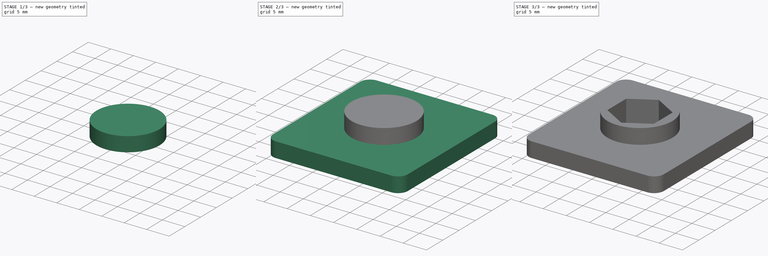
[diagram: build sequence overview — one tinted view per stage of 3, left to right]
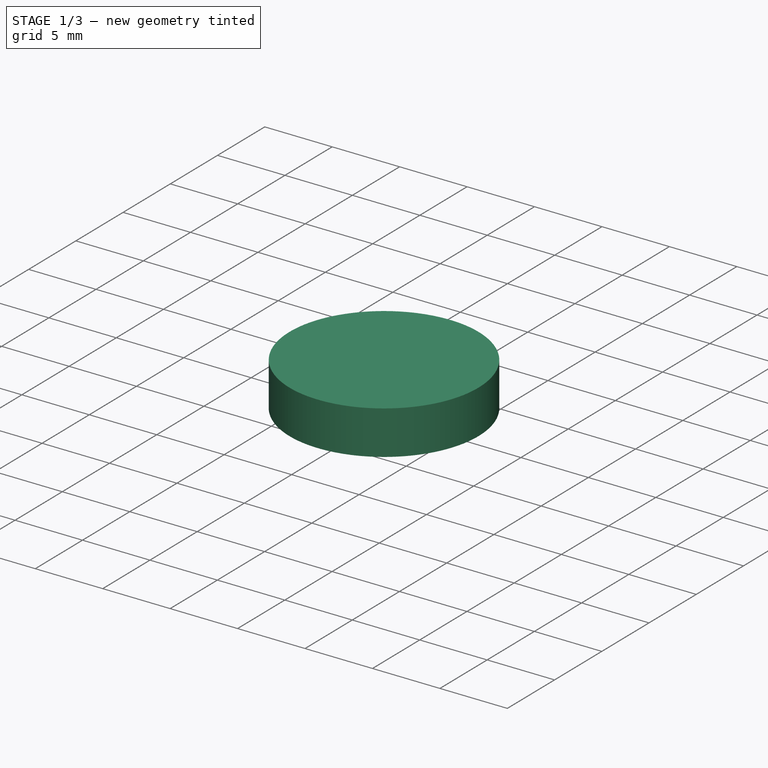
[diagram: stage 1 of 3 — iso view after this stage's code; geometry added in this stage tinted green]
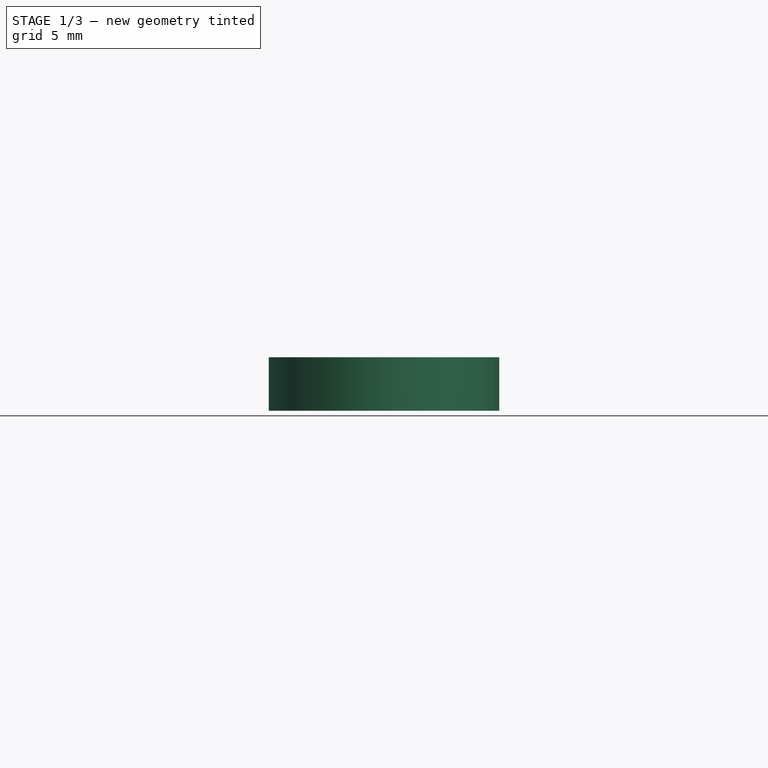
[diagram: stage 1 of 3 — front view after this stage's code; geometry added in this stage tinted green]
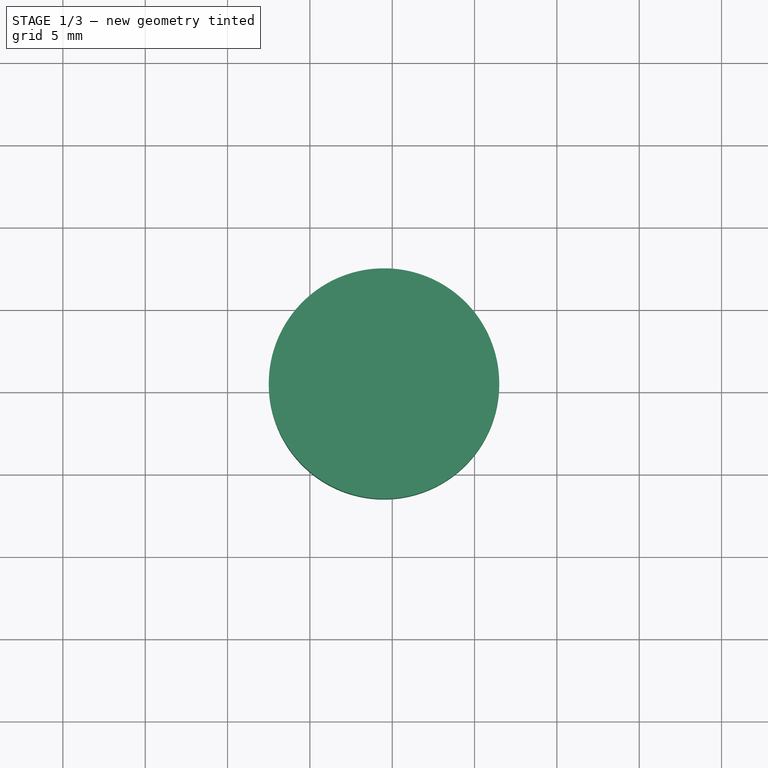
[diagram: stage 1 of 3 — top view after this stage's code; geometry added in this stage tinted green]
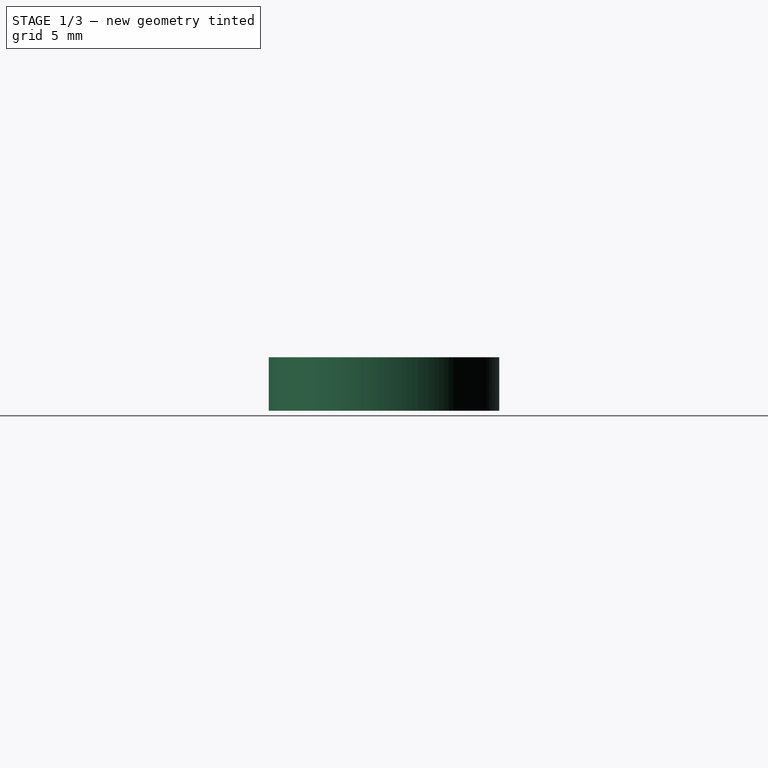
[diagram: stage 1 of 3 — right view after this stage's code; geometry added in this stage tinted green]
FCSTD DOCUMENT  (FreeCAD 0.20R29177 (Git))
Label: MirrorMount
License: All rights reserved
LicenseURL: http://en.wikipedia.org/wiki/All_rights_reserved
objects: Sketcher::SketchObject×4, Part::Face×4, Part::Extrusion×4, Part::Cut×2, Part::Fillet×1, Part::Fuse×1
note: 16 computed .brp shape members not serialized (recipe doc carries the construction recipe); baked Part::Feature solids carry a one-line shape summary decoded from their .brp

FEATURE [Sketcher::SketchObject] Sketch
  FullyConstrained = false
  sketch-geometry (11):
    g0: LineSegment StartX=0 StartY=0 StartZ=0 EndX=29 EndY=0 EndZ=0
    g1: LineSegment StartX=29 StartY=0 StartZ=0 EndX=29 EndY=31 EndZ=0
    g2: LineSegment StartX=29 StartY=31 StartZ=0 EndX=0 EndY=31 EndZ=0
    g3: LineSegment StartX=0 StartY=31 StartZ=0 EndX=0 EndY=0 EndZ=0
    g4: Circle CenterX=14.5 CenterY=15.5 CenterZ=0 NormalX=0 NormalY=0 NormalZ=1 AngleXU=0 Radius=7
    g5: LineSegment StartX=14.5 StartY=15.5 StartZ=0 EndX=29 EndY=15.5 EndZ=0
    g6: LineSegment StartX=14.5 StartY=15.5 StartZ=0 EndX=0 EndY=15.5 EndZ=0
    g7: LineSegment StartX=14.5 StartY=15.5 StartZ=0 EndX=14.5 EndY=22.5 EndZ=0
    g8: LineSegment StartX=14.5 StartY=15.5 StartZ=0 EndX=14.5 EndY=8.17687 EndZ=0
    g9: LineSegment StartX=14.5 StartY=8.17687 StartZ=0 EndX=14.5 EndY=0 EndZ=0
    g10: LineSegment StartX=0 StartY=0 StartZ=0 EndX=29 EndY=31 EndZ=0
  constraints (30):
    c: Coincident(g0,g1)
    c: Coincident(g1,g2)
    c: Coincident(g2,g3)
    c: Coincident(g3,g0)
    c: Horizontal(g0)
    c: Horizontal(g2)
    c: Vertical(g1)
    c: Vertical(g3)
    c: Coincident(g0,g-1)
    c: DistanceX(g0,g0) = 29
    c: Diameter(g4) = 14
    c: Coincident(g5,g4)
    c: PointOnObject(g5,g1)
    c: Horizontal(g5)
    c: Coincident(g6,g4)
    c: PointOnObject(g6,g3)
    c: Perpendicular(g3,g6)
    c: Equal(g5,g6)
    c: Coincident(g7,g4)
    c: PointOnObject(g7,g4)
    c: Vertical(g7)
    c: DistanceY(g0,g7) = 22.5
    c: Coincident(g8,g4)
    c: Vertical(g8)
    c: Coincident(g9,g8)
    c: PointOnObject(g9,g0)
    c: Perpendicular(g0,g9)
    c: Coincident(g10,g0)
    c: Coincident(g10,g1)
    c: PointOnObject(g4,g10)
FEATURE [Part::Face] Face
  FaceMakerClass = Part::FaceMakerBullseye
  Sources = -> [Sketch]
FEATURE [Part::Extrusion] Extrude
  Base = -> Face
  Dir = (0,0,1)
  DirMode = 2
  FaceMakerClass = Part::FaceMakerBullseye
  LengthFwd = 3.25
  LengthRev = 0
  Solid = false
  Symmetric = false
FEATURE [Part::Fillet] Fillet
  Base = -> Extrude
  Edges = 4 edges r=2.1: [Edge1,Edge2,Edge5,Edge8]
FEATURE [Sketcher::SketchObject] Sketch001
  ExternalGeometry = -> [Sketch]
  FullyConstrained = true
  MapMode = 5
  Placement = pos=(0,0,3.25) rot=(0,0,1;0rad)
  Support = -> [Fillet]
  sketch-geometry (3):
    g0: Circle CenterX=14.5 CenterY=15.5 CenterZ=0 NormalX=0 NormalY=0 NormalZ=1 AngleXU=0 Radius=7
    g1: LineSegment StartX=0 StartY=31 StartZ=0 EndX=29 EndY=0 EndZ=0
    g2: LineSegment StartX=0 StartY=0 StartZ=0 EndX=29 EndY=31 EndZ=0
  constraints (7):
    c: Coincident(g1,g-4)
    c: Coincident(g1,g-3)
    c: Coincident(g2,g-1)
    c: Coincident(g2,g-4)
    c: PointOnObject(g0,g2)
    c: PointOnObject(g0,g1)
    c: Diameter(g0) = 14
FEATURE [Part::Face] Face001
  FaceMakerClass = Part::FaceMakerBullseye
  Sources = -> [Sketch001]
FEATURE [Part::Extrusion] Extrude001
  Base = -> Face001
  Dir = (0,0,1)
  DirMode = 2
  FaceMakerClass = Part::FaceMakerBullseye
  LengthFwd = 3.25
  LengthRev = 0
  Solid = false
  Symmetric = false
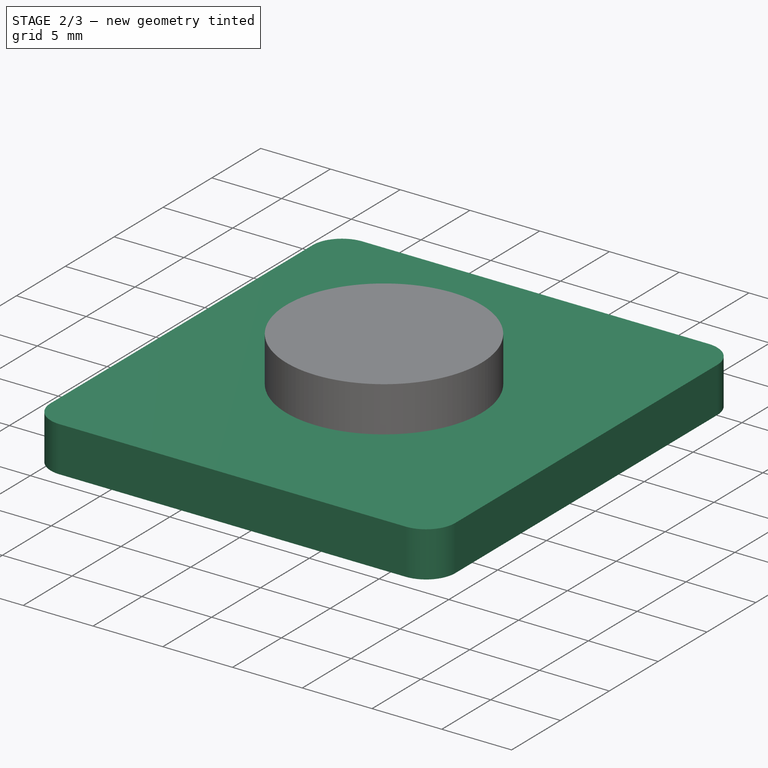
[diagram: stage 2 of 3 — iso view after this stage's code; geometry added in this stage tinted green]
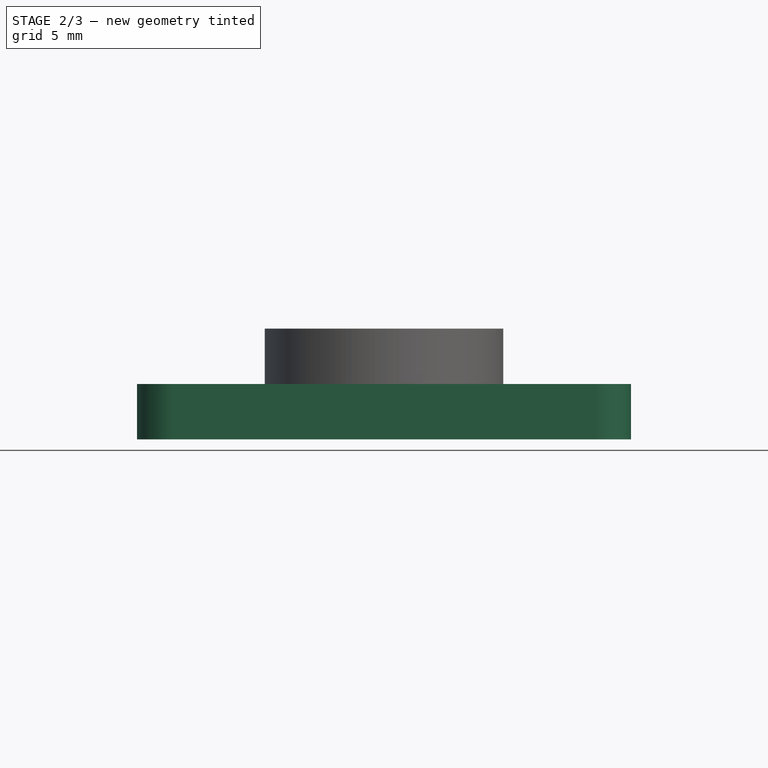
[diagram: stage 2 of 3 — front view after this stage's code; geometry added in this stage tinted green]
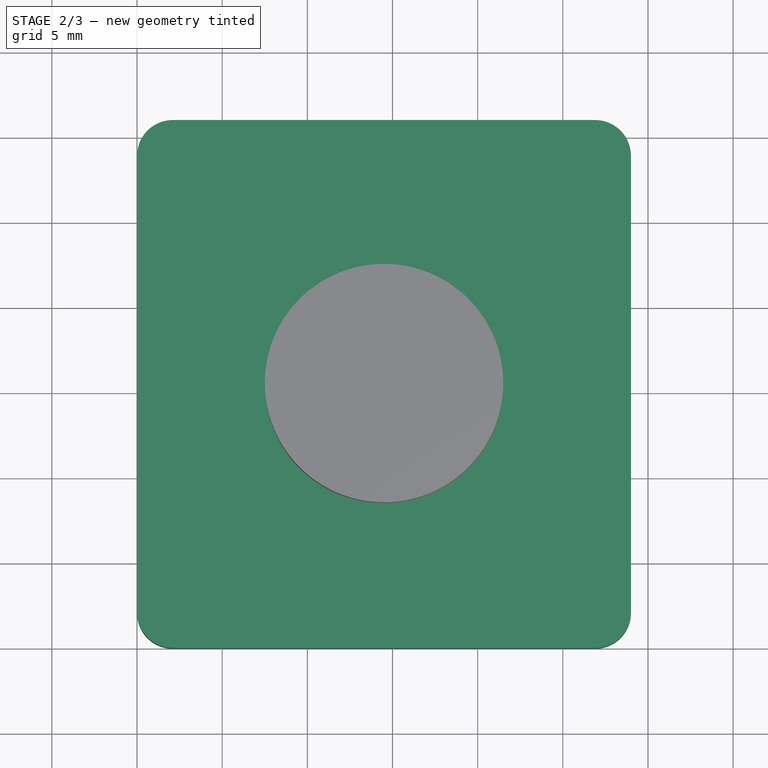
[diagram: stage 2 of 3 — top view after this stage's code; geometry added in this stage tinted green]
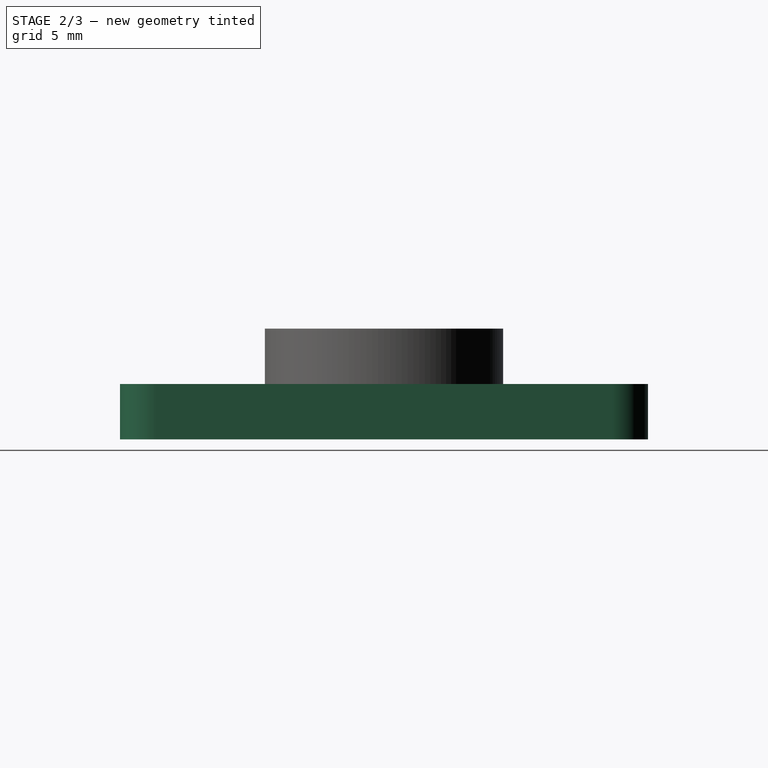
[diagram: stage 2 of 3 — right view after this stage's code; geometry added in this stage tinted green]
FEATURE [Sketcher::SketchObject] Sketch002
  ExternalGeometry = -> [Sketch]
  FullyConstrained = true
  MapMode = 5
  Placement = pos=(0,0,6.5) rot=(0,0,1;0rad)
  Support = -> [Extrude001]
  sketch-geometry (9):
    g0: LineSegment StartX=19.5 StartY=12.6132 StartZ=0 EndX=19.5 EndY=18.3868 EndZ=0
    g1: LineSegment StartX=19.5 StartY=18.3868 StartZ=0 EndX=14.5 EndY=21.2735 EndZ=0
    g2: LineSegment StartX=14.5 StartY=21.2735 StartZ=0 EndX=9.5 EndY=18.3868 EndZ=0
    g3: LineSegment StartX=9.5 StartY=18.3868 StartZ=0 EndX=9.5 EndY=12.6132 EndZ=0
    g4: LineSegment StartX=9.5 StartY=12.6132 StartZ=0 EndX=14.5 EndY=9.7265 EndZ=0
    g5: LineSegment StartX=14.5 StartY=9.7265 StartZ=0 EndX=19.5 EndY=12.6132 EndZ=0
    g6: Circle CenterX=14.5 CenterY=15.5 CenterZ=0 NormalX=0 NormalY=0 NormalZ=1 AngleXU=0 Radius=5.7735
    g7: LineSegment StartX=0 StartY=31 StartZ=0 EndX=29 EndY=0 EndZ=0
    g8: LineSegment StartX=0 StartY=0 StartZ=0 EndX=29 EndY=31 EndZ=0
  constraints (21):
    c: Coincident(g0,g1)
    c: Coincident(g1,g2)
    c: Coincident(g2,g3)
    c: Coincident(g3,g4)
    c: Coincident(g4,g5)
    c: Coincident(g5,g0)
    c: Equal(g0, g1-g5) x5
    c: PointOnObject(g0,g6)
    c: PointOnObject(g1,g6)
    c: PointOnObject(g2,g6)
    c: PointOnObject(g3,g6)
    c: PointOnObject(g4,g6)
    c: PointOnObject(g5,g6)
    c: Coincident(g7,g-4)
    c: Coincident(g7,g-3)
    c: Coincident(g8,g-1)
    c: Coincident(g8,g-4)
    c: PointOnObject(g6,g8)
    c: PointOnObject(g6,g7)
    c: Parallel(g3,g-2)
    c: DistanceX(g3,g0) = 10
FEATURE [Part::Face] Face002
  FaceMakerClass = Part::FaceMakerBullseye
  Sources = -> [Sketch002]
FEATURE [Part::Extrusion] Extrude002
  Base = -> Face002
  Dir = (0,0,1)
  DirMode = 2
  FaceMakerClass = Part::FaceMakerBullseye
  LengthFwd = -5
  LengthRev = 0
  Solid = false
  Symmetric = false
FEATURE [Part::Fuse] Fusion
  Base = -> Fillet
  Tool = -> Extrude001
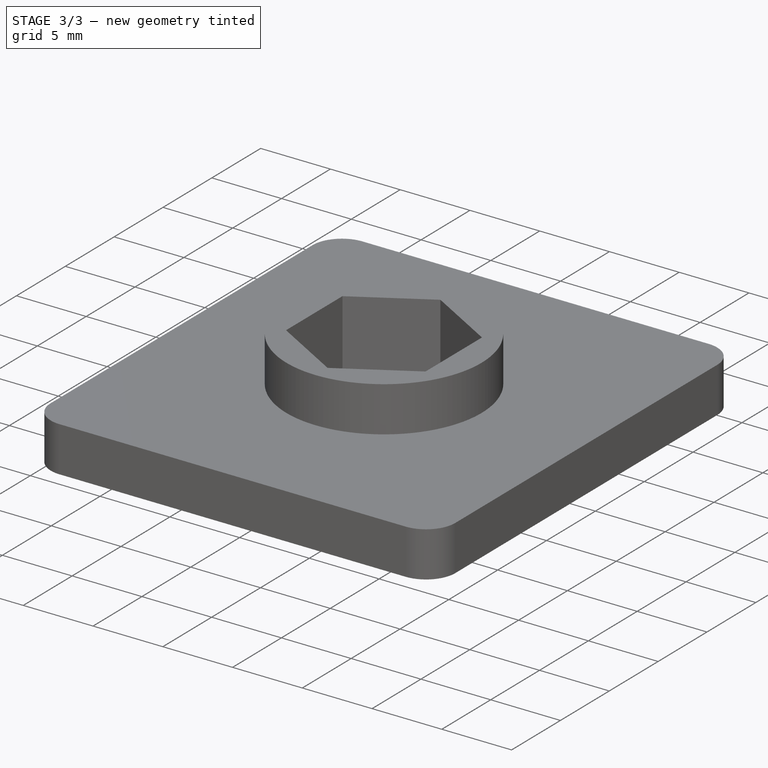
[diagram: stage 3 of 3 — iso view after this stage's code; geometry added in this stage tinted green]
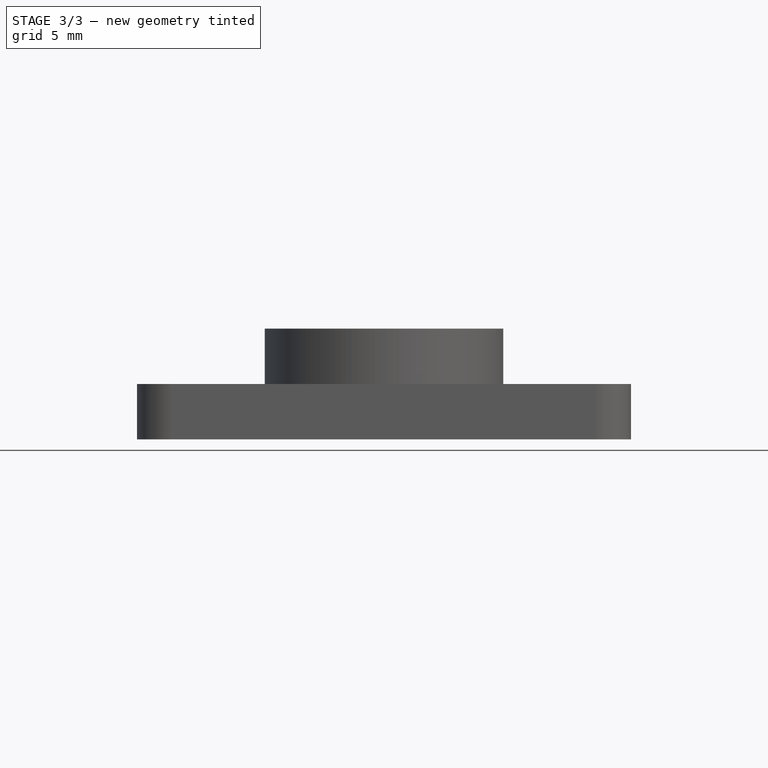
[diagram: stage 3 of 3 — front view after this stage's code; geometry added in this stage tinted green]
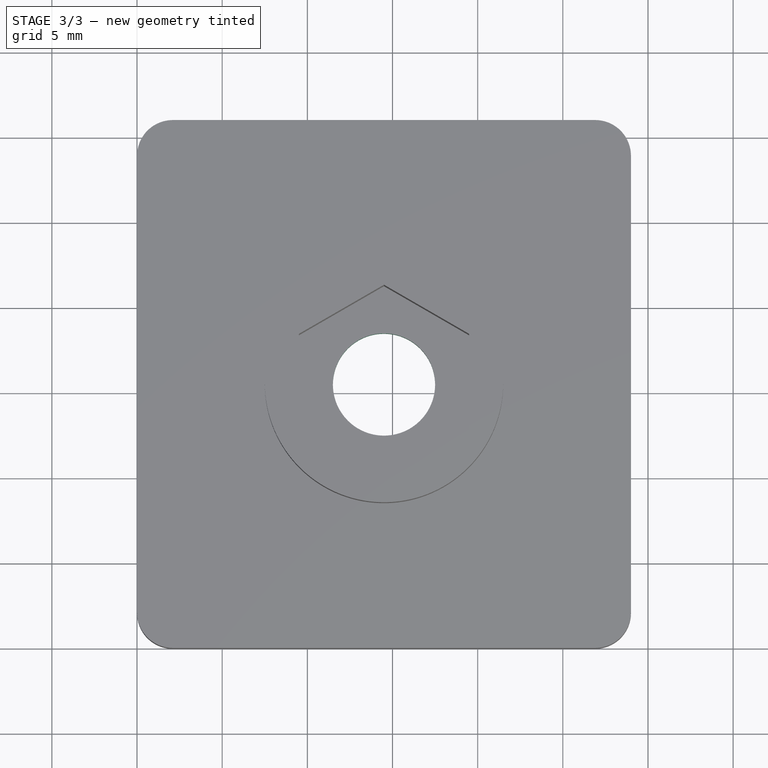
[diagram: stage 3 of 3 — top view after this stage's code; geometry added in this stage tinted green]
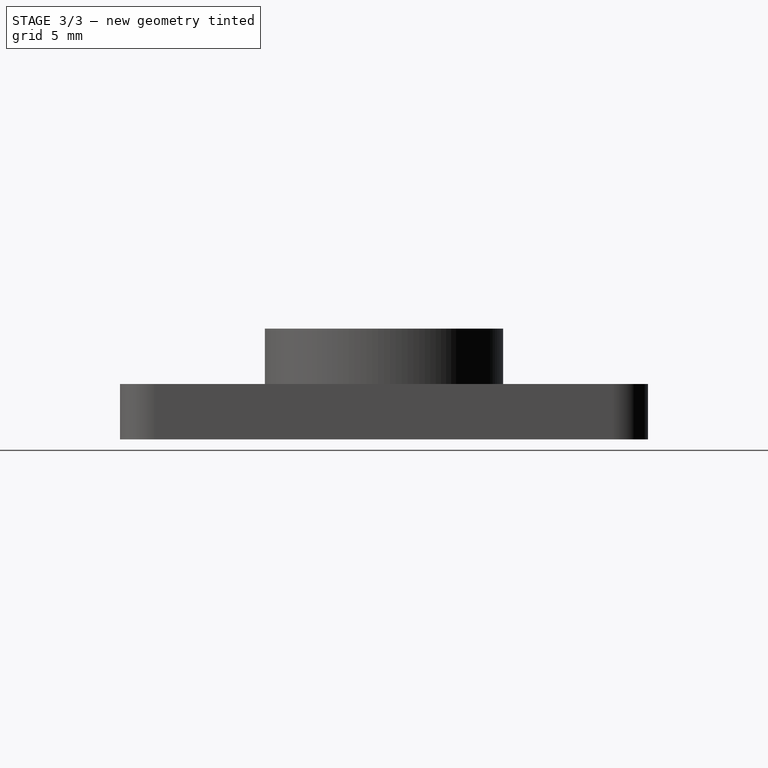
[diagram: stage 3 of 3 — right view after this stage's code; geometry added in this stage tinted green]
FEATURE [Part::Cut] Cut
  Base = -> Fusion
  Tool = -> Extrude002
FEATURE [Sketcher::SketchObject] Sketch003
  ExternalGeometry = -> [Sketch]
  FullyConstrained = true
  MapMode = 5
  Placement = pos=(0,0,1.5) rot=(0,0,1;0rad)
  Support = -> [Cut]
  sketch-geometry (3):
    g0: Circle CenterX=14.5 CenterY=15.5 CenterZ=0 NormalX=0 NormalY=0 NormalZ=1 AngleXU=0 Radius=3
    g1: LineSegment StartX=0 StartY=31 StartZ=0 EndX=29 EndY=0 EndZ=0
    g2: LineSegment StartX=0 StartY=0 StartZ=0 EndX=29 EndY=31 EndZ=0
  constraints (7):
    c: Diameter(g0) = 6
    c: Coincident(g1,g-4)
    c: Coincident(g1,g-3)
    c: Coincident(g2,g-1)
    c: Coincident(g2,g-4)
    c: PointOnObject(g0,g2)
    c: PointOnObject(g0,g1)
FEATURE [Part::Face] Face003
  FaceMakerClass = Part::FaceMakerBullseye
  Sources = -> [Sketch003]
FEATURE [Part::Extrusion] Extrude003
  Base = -> Sketch003
  Dir = (0,0,1)
  DirMode = 2
  FaceMakerClass = Part::FaceMakerBullseye
  LengthFwd = -10
  LengthRev = 0
  Solid = true
  Symmetric = false
FEATURE [Part::Cut] Cut001
  Base = -> Cut
  Tool = -> Extrude003
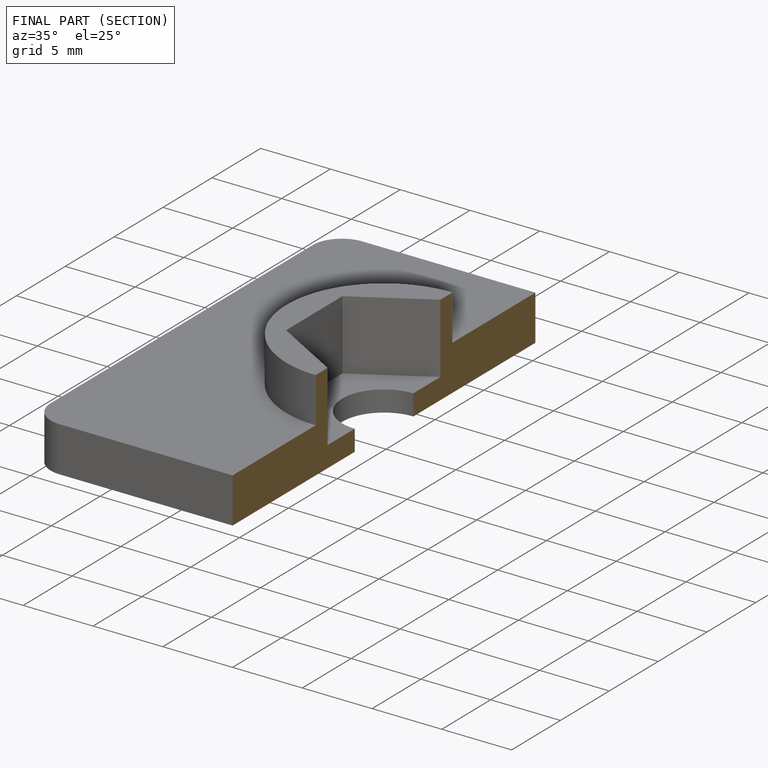
[diagram: finished part — half-section view (interior)]
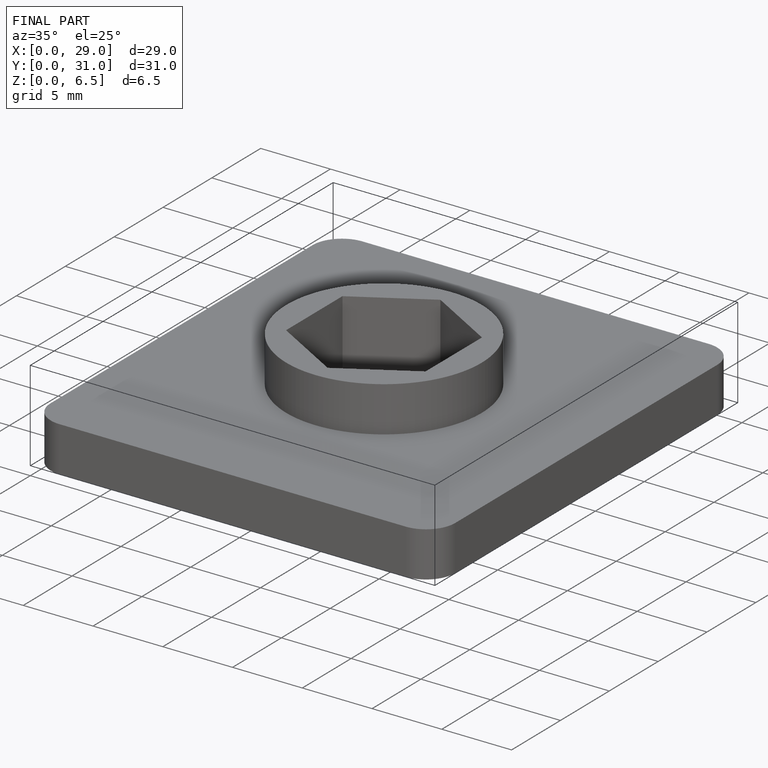
[diagram: finished part — iso view with bounding-box wireframe]
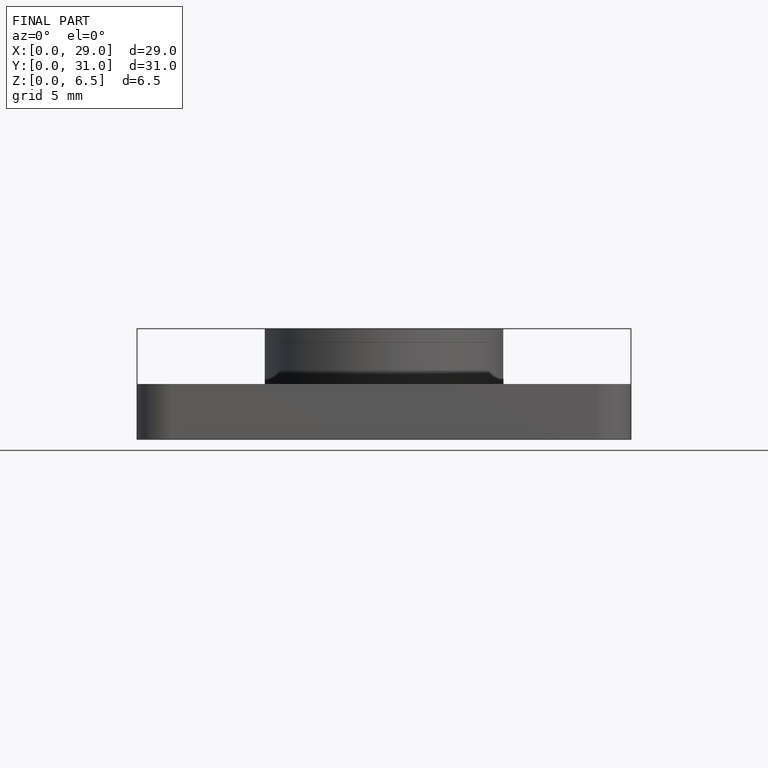
[diagram: finished part — front view with bounding-box wireframe]
